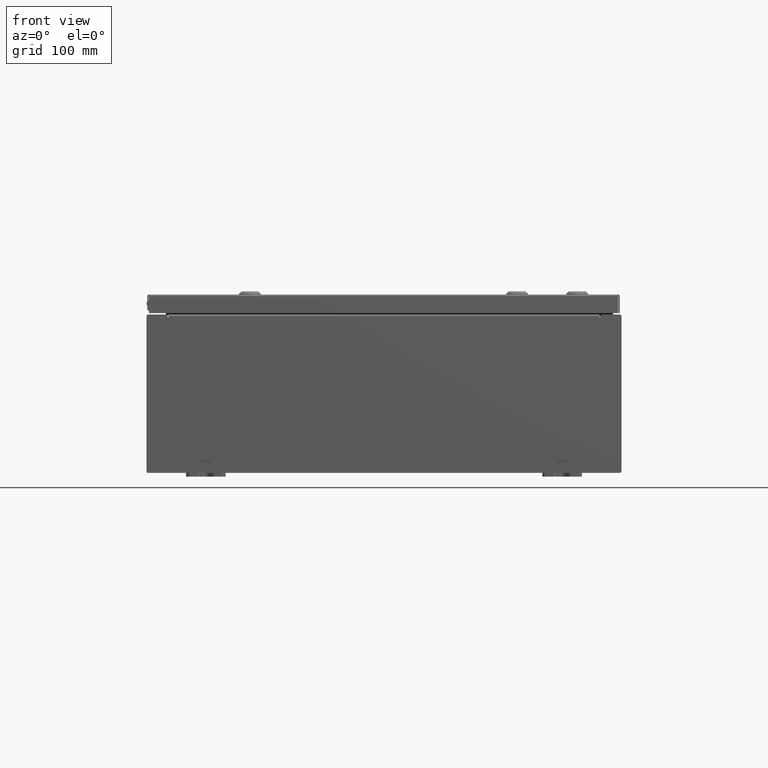
[diagram: clean part render]
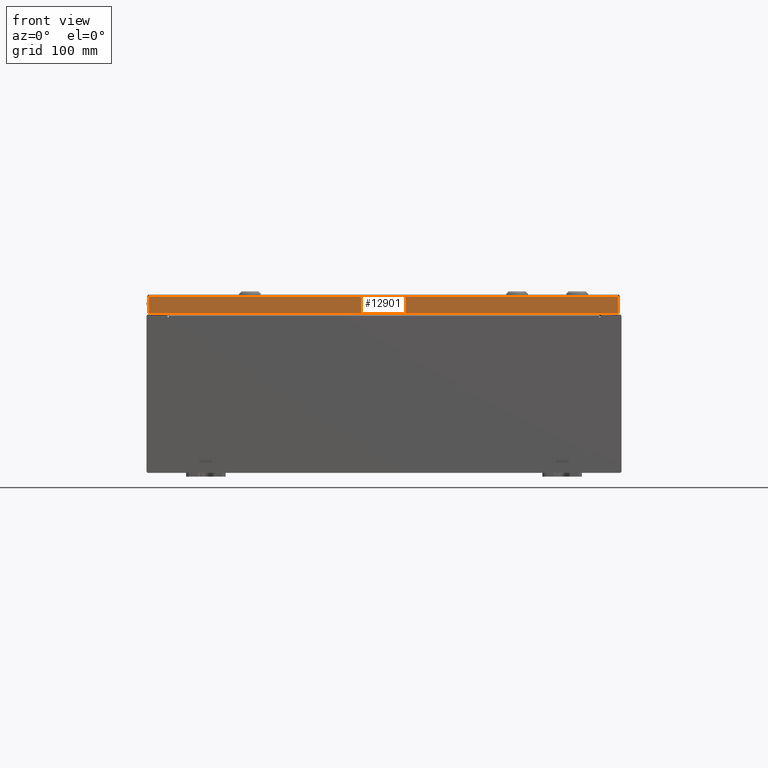
[diagram: same view with one face highlighted and labeled with its STEP entity id]
A machine part, front view. The second image highlights one B-rep face of the part: STEP entity #12901.
In plain terms, the highlighted planar face has unit normal (-0, 1, -0).
Its self-contained STEP definition (entity closure, byte-faithful):
#3861 = DIRECTION ( 'NONE',  ( 0.0000000000000000000, 2.532419924601866100E-015, 1.000000000000000000 ) ) ;
#4564 = VERTEX_POINT ( 'NONE', #17766 ) ;
#5362 = VECTOR ( 'NONE', #47969, 39.37007874015748100 ) ;
#7379 = EDGE_CURVE ( 'NONE', #36559, #36566, #54517, .T. ) ;
#9760 = CARTESIAN_POINT ( 'NONE',  ( 11.84865786437626900, -11.93750000000000000, -0.07469999999999980800 ) ) ;
#12901 = ADVANCED_FACE ( 'NONE', ( #52313 ), #57696, .F. ) ;
#13655 = CARTESIAN_POINT ( 'NONE',  ( 11.93750000000000000, -11.93750000000000200, -0.9376999999999997600 ) ) ;
#13851 = VECTOR ( 'NONE', #43857, 39.37007874015748100 ) ;
#17766 = CARTESIAN_POINT ( 'NONE',  ( 11.84865786437626900, -11.93750000000000200, -0.9376999999999997600 ) ) ;
#24947 = LINE ( 'NONE', #9760, #36448 ) ;
#25199 = DIRECTION ( 'NONE',  ( 1.000000000000000000, 3.187436615352006600E-031, -7.980458346197363700E-046 ) ) ;
#27385 = CARTESIAN_POINT ( 'NONE',  ( -11.84865786437626800, -11.93750000000000200, -0.9376999999999967600 ) ) ;
#27455 = VECTOR ( 'NONE', #25199, 39.37007874015748100 ) ;
#29886 = EDGE_CURVE ( 'NONE', #4564, #36566, #31497, .T. ) ;
#31497 = LINE ( 'NONE', #13655, #5362 ) ;
#33289 = DIRECTION ( 'NONE',  ( -3.187436615352006200E-031, 1.000000000000000000, -2.532419924601866100E-015 ) ) ;
#35857 = AXIS2_PLACEMENT_3D ( 'NONE', #47867, #33289, #3861 ) ;
#36039 = ORIENTED_EDGE ( 'NONE', *, *, #58976, .F. ) ;
#36448 = VECTOR ( 'NONE', #39388, 39.37007874015748100 ) ;
#36559 = VERTEX_POINT ( 'NONE', #56700 ) ;
#36566 = VERTEX_POINT ( 'NONE', #27385 ) ;
#38942 = LINE ( 'NONE', #54549, #27455 ) ;
#39388 = DIRECTION ( 'NONE',  ( -0.0000000000000000000, -2.532419924601866100E-015, -1.000000000000000000 ) ) ;
#43857 = DIRECTION ( 'NONE',  ( 0.0000000000000000000, -2.532419924601866100E-015, -1.000000000000000000 ) ) ;
#46177 = EDGE_CURVE ( 'NONE', #36559, #57972, #38942, .T. ) ;
#47867 = CARTESIAN_POINT ( 'NONE',  ( 3.805002459576457300E-030, -11.93750000000000000, 3.049157650594635900E-014 ) ) ;
#47969 = DIRECTION ( 'NONE',  ( -1.000000000000000000, 4.379057701015054300E-047, 1.258652478756310100E-016 ) ) ;
#52313 = FACE_OUTER_BOUND ( 'NONE', #63289, .T. ) ;
#54517 = LINE ( 'NONE', #63553, #13851 ) ;
#54549 = CARTESIAN_POINT ( 'NONE',  ( 11.93750000000000000, -11.93750000000000000, -0.08770000000000008300 ) ) ;
#56650 = ORIENTED_EDGE ( 'NONE', *, *, #29886, .F. ) ;
#56700 = CARTESIAN_POINT ( 'NONE',  ( -11.84865786437626800, -11.93750000000000000, -0.08770000000000008300 ) ) ;
#57696 = PLANE ( 'NONE',  #35857 ) ;
#57972 = VERTEX_POINT ( 'NONE', #61715 ) ;
#58976 = EDGE_CURVE ( 'NONE', #57972, #4564, #24947, .T. ) ;
#59390 = ORIENTED_EDGE ( 'NONE', *, *, #7379, .T. ) ;
#61520 = ORIENTED_EDGE ( 'NONE', *, *, #46177, .F. ) ;
#61715 = CARTESIAN_POINT ( 'NONE',  ( 11.84865786437627100, -11.93750000000000000, -0.08770000000000008300 ) ) ;
#63289 = EDGE_LOOP ( 'NONE', ( #61520, #59390, #56650, #36039 ) ) ;
#63553 = CARTESIAN_POINT ( 'NONE',  ( -11.84865786437626600, -11.93750000000000000, 3.049157650594635900E-014 ) ) ;